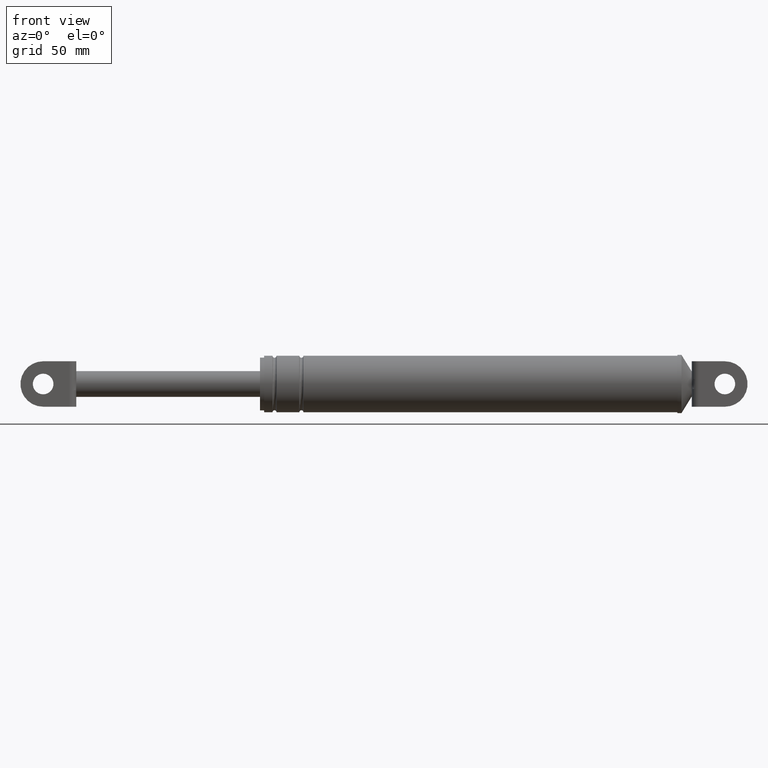
[diagram: clean part render]
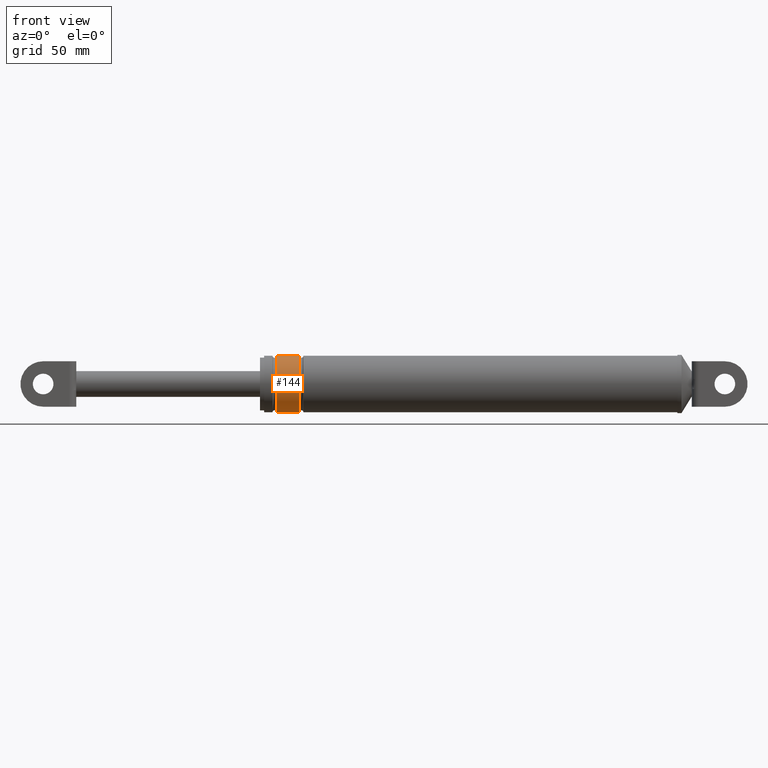
[diagram: same view with one face highlighted and labeled with its STEP entity id]
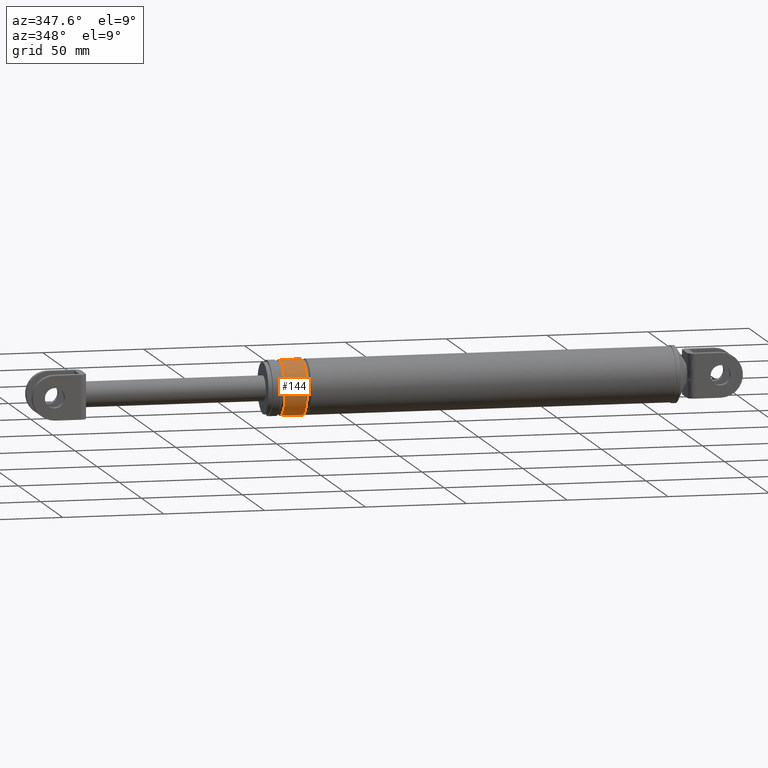
[diagram: same view with one face highlighted and labeled with its STEP entity id]
A machine part, front view. The second image highlights one B-rep face of the part: STEP entity #144.
A second angle (auxiliary view) of the same face is appended — the face is thin or edge-on in the first view.
In plain terms, the highlighted cylindrical surface (edge-blend (fillet) strip) has radius 13.7 mm, axis along (-1, -0, -0).
Its self-contained STEP definition (entity closure, byte-faithful):
#144=ADVANCED_FACE('',(#503),#502,.T.);
#502=CYLINDRICAL_SURFACE('',#1457,1.37000000000E+001);
#503=FACE_OUTER_BOUND('',#1458,.T.);
#1454=CARTESIAN_POINT('',(1.61074045421E+002,-2.26732403242E-014,1.90372912185E+002));
#1455=DIRECTION('',(-1.00000000000E+000,-7.33473849312E-016,-9.54710598443E-031));
#1456=DIRECTION('',(-3.48999359767E-031,1.77744572548E-015,-1.00000000000E+000));
#1457=AXIS2_PLACEMENT_3D('',#1454,#1455,#1456);
#1458=EDGE_LOOP('',(#2085,#2086,#2087,#2088));
#2085=ORIENTED_EDGE('',*,*,#2323,.F.);
#2086=ORIENTED_EDGE('',*,*,#2324,.F.);
#2087=ORIENTED_EDGE('',*,*,#2322,.T.);
#2088=ORIENTED_EDGE('',*,*,#2325,.T.);
#2322=EDGE_CURVE('',#2918,#2917,#2937,.T.);
#2323=EDGE_CURVE('',#2943,#2944,#2945,.T.);
#2324=EDGE_CURVE('',#2918,#2943,#2951,.T.);
#2325=EDGE_CURVE('',#2917,#2944,#2957,.T.);
#2917=VERTEX_POINT('',#3761);
#2918=VERTEX_POINT('',#3762);
#2937=CIRCLE('',#3780,1.37000000000E+001);
#2943=VERTEX_POINT('',#3781);
#2944=VERTEX_POINT('',#3782);
#2945=CIRCLE('',#3786,1.37000000000E+001);
#2951=(BOUNDED_CURVE() B_SPLINE_CURVE(1,(#3787,#3788),.UNSPECIFIED.,.F.,.F.) B_SPLINE_CURVE_WITH_KNOTS((2,2),(8.33333343261E-002,9.16666667006E-001),.UNSPECIFIED.) CURVE() GEOMETRIC_REPRESENTATION_ITEM() RATIONAL_B_SPLINE_CURVE((1.00000000000E+000,1.00000000000E+000)) REPRESENTATION_ITEM('') );
#2957=(BOUNDED_CURVE() B_SPLINE_CURVE(1,(#3789,#3790),.UNSPECIFIED.,.F.,.F.) B_SPLINE_CURVE_WITH_KNOTS((2,2),(8.33333333333E-002,9.16666666667E-001),.UNSPECIFIED.) CURVE() GEOMETRIC_REPRESENTATION_ITEM() RATIONAL_B_SPLINE_CURVE((7.50000000000E-001,7.50000000000E-001)) REPRESENTATION_ITEM('') );
#3761=CARTESIAN_POINT('',(1.73174045421E+002,-1.45661260831E-013,2.04072912185E+002));
#3762=CARTESIAN_POINT('',(1.73174045421E+002,-2.27956466033E-014,1.76672912185E+002));
#3777=CARTESIAN_POINT('',(1.73174045421E+002,-8.91258111932E-014,1.90372912185E+002));
#3778=DIRECTION('',(-1.00000000000E+000,0.00000000000E+000,0.00000000000E+000));
#3779=DIRECTION('',(-0.00000000000E+000,4.27506800805E-015,-1.00000000000E+000));
#3780=AXIS2_PLACEMENT_3D('',#3777,#3778,#3779);
#3781=CARTESIAN_POINT('',(1.62174045421E+002,7.52689430633E-015,1.76672912185E+002));
#3782=CARTESIAN_POINT('',(1.62174045421E+002,2.30926389122E-014,2.04072912185E+002));
#3783=CARTESIAN_POINT('',(1.62174045421E+002,1.12117697108E-014,1.90372912185E+002));
#3784=DIRECTION('',(-1.00000000000E+000,-7.33473849312E-016,-6.90080059566E-031));
#3785=DIRECTION('',(1.30291128875E-030,-8.35518852861E-016,-1.00000000000E+000));
#3786=AXIS2_PLACEMENT_3D('',#3783,#3784,#3785);
#3787=CARTESIAN_POINT('',(1.73174045408E+002,1.05527996819E-014,1.76672912185E+002));
#3788=CARTESIAN_POINT('',(1.62174045417E+002,2.48458734579E-015,1.76672912185E+002));
#3789=CARTESIAN_POINT('',(1.73174045421E+002,-3.74515233640E-014,2.04072912185E+002));
#3790=CARTESIAN_POINT('',(1.62174045421E+002,-4.48530101949E-014,2.04072912185E+002));